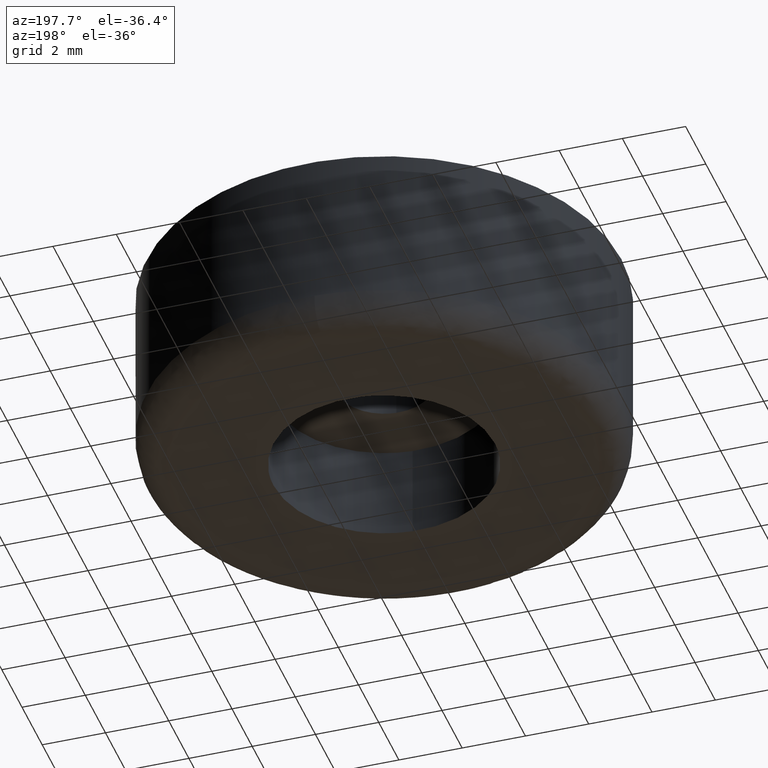
[diagram: clean part render]
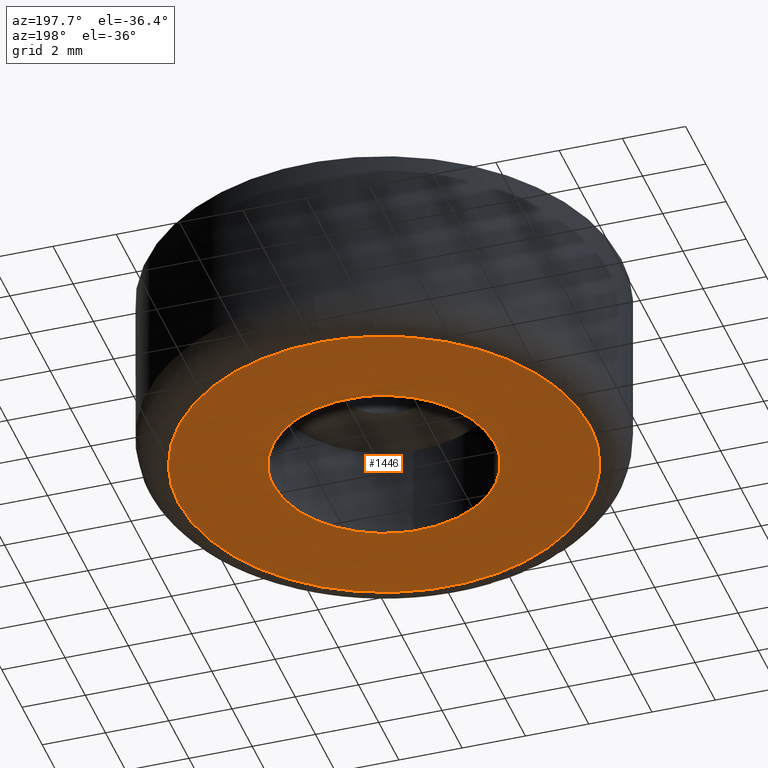
[diagram: same view with one face highlighted and labeled with its STEP entity id]
A machine part, auxiliary view. The second image highlights one B-rep face of the part: STEP entity #1446.
In plain terms, the highlighted face is a freeform B-spline surface patch.
Its self-contained STEP definition (entity closure, byte-faithful):
#1111=CARTESIAN_POINT('',(-0.413114733030786,3.475533947083044,-1.670294E-014));
#1112=VERTEX_POINT('',#1111);
#1113=CARTESIAN_POINT('',(3.500000000000000,0.0,0.0));
#1114=VERTEX_POINT('',#1113);
#1115=CARTESIAN_POINT('',(-0.413114733030786,3.475533947083044,-1.670294E-014));
#1116=CARTESIAN_POINT('',(-0.207281847752051,3.500000000000000,0.0));
#1117=CARTESIAN_POINT('',(0.0,3.500000000000000,0.0));
#1118=CARTESIAN_POINT('',(3.500000000000000,3.500000000000000,0.0));
#1119=CARTESIAN_POINT('',(3.500000000000000,0.0,0.0));
#1127=(BOUNDED_CURVE()B_SPLINE_CURVE(2,(#1115,#1116,#1117,#1118,#1119),.UNSPECIFIED.,.F.,.U.)B_SPLINE_CURVE_WITH_KNOTS((3,2,3),(0.229562720940656,0.250000000000000,0.500000000000000),.UNSPECIFIED.)CURVE()GEOMETRIC_REPRESENTATION_ITEM()RATIONAL_B_SPLINE_CURVE((0.956027239151607,0.976056238210079,1.0,0.707106781186547,1.0))REPRESENTATION_ITEM(''));
#1128=EDGE_CURVE('',#1112,#1114,#1127,.T.);
#1130=CARTESIAN_POINT('',(0.213664643025975,-3.493472115287735,-2.089995E-014));
#1131=VERTEX_POINT('',#1130);
#1132=CARTESIAN_POINT('',(3.500000000000000,0.0,0.0));
#1133=CARTESIAN_POINT('',(3.500000000000000,-3.292476186960466,0.0));
#1134=CARTESIAN_POINT('',(0.213664643025976,-3.493472115287735,-2.089995E-014));
#1142=(BOUNDED_CURVE()B_SPLINE_CURVE(2,(#1132,#1133,#1134),.UNSPECIFIED.,.F.,.U.)B_SPLINE_CURVE_WITH_KNOTS((3,3),(0.500000000000000,0.739333221315991),.UNSPECIFIED.)CURVE()GEOMETRIC_REPRESENTATION_ITEM()RATIONAL_B_SPLINE_CURVE((1.0,0.719603689759067,0.976072596918779))REPRESENTATION_ITEM(''));
#1143=EDGE_CURVE('',#1114,#1131,#1142,.T.);
#1214=CARTESIAN_POINT('',(-3.500000000000000,0.0,0.0));
#1215=VERTEX_POINT('',#1214);
#1216=CARTESIAN_POINT('',(-3.500000000000000,0.0,0.0));
#1217=CARTESIAN_POINT('',(-3.499999999999999,3.108615423954300,0.0));
#1218=CARTESIAN_POINT('',(-0.413114733030786,3.475533947083044,-1.670294E-014));
#1226=(BOUNDED_CURVE()B_SPLINE_CURVE(2,(#1216,#1217,#1218),.UNSPECIFIED.,.F.,.U.)B_SPLINE_CURVE_WITH_KNOTS((3,3),(0.0,0.229562720940656),.UNSPECIFIED.)CURVE()GEOMETRIC_REPRESENTATION_ITEM()RATIONAL_B_SPLINE_CURVE((1.0,0.731050542976468,0.956027239151607))REPRESENTATION_ITEM(''));
#1227=EDGE_CURVE('',#1215,#1112,#1226,.T.);
#1261=CARTESIAN_POINT('',(0.213664643025976,-3.493472115287735,-2.089995E-014));
#1262=CARTESIAN_POINT('',(0.106932041518631,-3.500000000000000,0.0));
#1263=CARTESIAN_POINT('',(0.0,-3.500000000000000,0.0));
#1264=CARTESIAN_POINT('',(-3.500000000000000,-3.500000000000000,0.0));
#1265=CARTESIAN_POINT('',(-3.500000000000000,0.0,0.0));
#1273=(BOUNDED_CURVE()B_SPLINE_CURVE(2,(#1261,#1262,#1263,#1264,#1265),.UNSPECIFIED.,.F.,.U.)B_SPLINE_CURVE_WITH_KNOTS((3,2,3),(0.739333221315991,0.750000000000000,1.0),.UNSPECIFIED.)CURVE()GEOMETRIC_REPRESENTATION_ITEM()RATIONAL_B_SPLINE_CURVE((0.976072596918779,0.987503091427480,1.0,0.707106781186547,1.0))REPRESENTATION_ITEM(''));
#1274=EDGE_CURVE('',#1131,#1215,#1273,.T.);
#1308=CARTESIAN_POINT('',(-0.163345620416824,6.497947230636082,1.874299E-016));
#1309=VERTEX_POINT('',#1308);
#1310=CARTESIAN_POINT('',(6.500000000000000,0.0,0.0));
#1311=VERTEX_POINT('',#1310);
#1312=CARTESIAN_POINT('',(-0.163345620416824,6.497947230636082,1.874299E-016));
#1313=CARTESIAN_POINT('',(-0.081685708829687,6.500000000000001,0.0));
#1314=CARTESIAN_POINT('',(0.0,6.500000000000000,0.0));
#1315=CARTESIAN_POINT('',(6.500000000000000,6.500000000000000,0.0));
#1316=CARTESIAN_POINT('',(6.500000000000000,0.0,0.0));
#1324=(BOUNDED_CURVE()B_SPLINE_CURVE(2,(#1312,#1313,#1314,#1315,#1316),.UNSPECIFIED.,.F.,.U.)B_SPLINE_CURVE_WITH_KNOTS((3,2,3),(0.245579891768315,0.250000000000000,0.500000000000000),.UNSPECIFIED.)CURVE()GEOMETRIC_REPRESENTATION_ITEM()RATIONAL_B_SPLINE_CURVE((0.989826157678203,0.994821521090072,1.0,0.707106781186547,1.0))REPRESENTATION_ITEM(''));
#1325=EDGE_CURVE('',#1309,#1311,#1324,.T.);
#1344=CARTESIAN_POINT('',(-6.497947230641152,-0.163345620417484,1.718108E-016));
#1345=VERTEX_POINT('',#1344);
#1359=CARTESIAN_POINT('',(6.500000000000000,0.0,0.0));
#1360=CARTESIAN_POINT('',(6.500000000000000,-6.500000000000000,0.0));
#1361=CARTESIAN_POINT('',(0.0,-6.500000000000000,0.0));
#1362=CARTESIAN_POINT('',(-6.338656195119136,-6.500000000000001,0.0));
#1363=CARTESIAN_POINT('',(-6.497947230641152,-0.163345620417484,1.718108E-016));
#1371=(BOUNDED_CURVE()B_SPLINE_CURVE(2,(#1359,#1360,#1361,#1362,#1363),.UNSPECIFIED.,.F.,.U.)B_SPLINE_CURVE_WITH_KNOTS((3,2,3),(0.500000000000000,0.750000000000000,0.995579891768287),.UNSPECIFIED.)CURVE()GEOMETRIC_REPRESENTATION_ITEM()RATIONAL_B_SPLINE_CURVE((1.0,0.707106781186547,1.0,0.712285260096508,0.989826157678140))REPRESENTATION_ITEM(''));
#1372=EDGE_CURVE('',#1311,#1345,#1371,.T.);
#1394=CARTESIAN_POINT('',(-6.500000000000000,0.0,0.0));
#1395=VERTEX_POINT('',#1394);
#1396=CARTESIAN_POINT('',(-6.500000000000000,0.0,0.0));
#1397=CARTESIAN_POINT('',(-6.499999999999999,6.338656195120151,0.0));
#1398=CARTESIAN_POINT('',(-0.163345620416824,6.497947230636082,1.874299E-016));
#1406=(BOUNDED_CURVE()B_SPLINE_CURVE(2,(#1396,#1397,#1398),.UNSPECIFIED.,.F.,.U.)B_SPLINE_CURVE_WITH_KNOTS((3,3),(0.0,0.245579891768315),.UNSPECIFIED.)CURVE()GEOMETRIC_REPRESENTATION_ITEM()RATIONAL_B_SPLINE_CURVE((1.0,0.712285260096475,0.989826157678204))REPRESENTATION_ITEM(''));
#1407=EDGE_CURVE('',#1395,#1309,#1406,.T.);
#1409=CARTESIAN_POINT('',(-6.497947230641152,-0.163345620417484,1.718108E-016));
#1410=CARTESIAN_POINT('',(-6.500000000000000,-0.081685708830220,0.0));
#1411=CARTESIAN_POINT('',(-6.500000000000000,0.0,0.0));
#1419=(BOUNDED_CURVE()B_SPLINE_CURVE(2,(#1409,#1410,#1411),.UNSPECIFIED.,.F.,.U.)B_SPLINE_CURVE_WITH_KNOTS((3,3),(0.995579891768287,1.0),.UNSPECIFIED.)CURVE()GEOMETRIC_REPRESENTATION_ITEM()RATIONAL_B_SPLINE_CURVE((0.989826157678138,0.994821521090039,1.0))REPRESENTATION_ITEM(''));
#1420=EDGE_CURVE('',#1345,#1395,#1419,.T.);
#1429=CARTESIAN_POINT('',(-7.149349974803477,-7.148708801115540,0.0));
#1430=CARTESIAN_POINT('',(7.149350323490650,-7.148708801115540,0.0));
#1431=CARTESIAN_POINT('',(-7.149349974803477,7.147169393240285,0.0));
#1432=CARTESIAN_POINT('',(7.149350323490650,7.147169393240285,0.0));
#1433=B_SPLINE_SURFACE_WITH_KNOTS('',1,1,((#1429,#1431),(#1430,#1432)),.UNSPECIFIED.,.F.,.F.,.U.,(2,2),(2,2),(0.0,14.298700298294129),(0.0,14.295878194355829),.UNSPECIFIED.);
#1434=ORIENTED_EDGE('',*,*,#1407,.T.);
#1435=ORIENTED_EDGE('',*,*,#1325,.T.);
#1436=ORIENTED_EDGE('',*,*,#1372,.T.);
#1437=ORIENTED_EDGE('',*,*,#1420,.T.);
#1438=EDGE_LOOP('',(#1434,#1435,#1436,#1437));
#1439=FACE_OUTER_BOUND('',#1438,.T.);
#1440=ORIENTED_EDGE('',*,*,#1143,.F.);
#1441=ORIENTED_EDGE('',*,*,#1128,.F.);
#1442=ORIENTED_EDGE('',*,*,#1227,.F.);
#1443=ORIENTED_EDGE('',*,*,#1274,.F.);
#1444=EDGE_LOOP('',(#1440,#1441,#1442,#1443));
#1445=FACE_BOUND('',#1444,.T.);
#1446=ADVANCED_FACE('',(#1439,#1445),#1433,.F.);